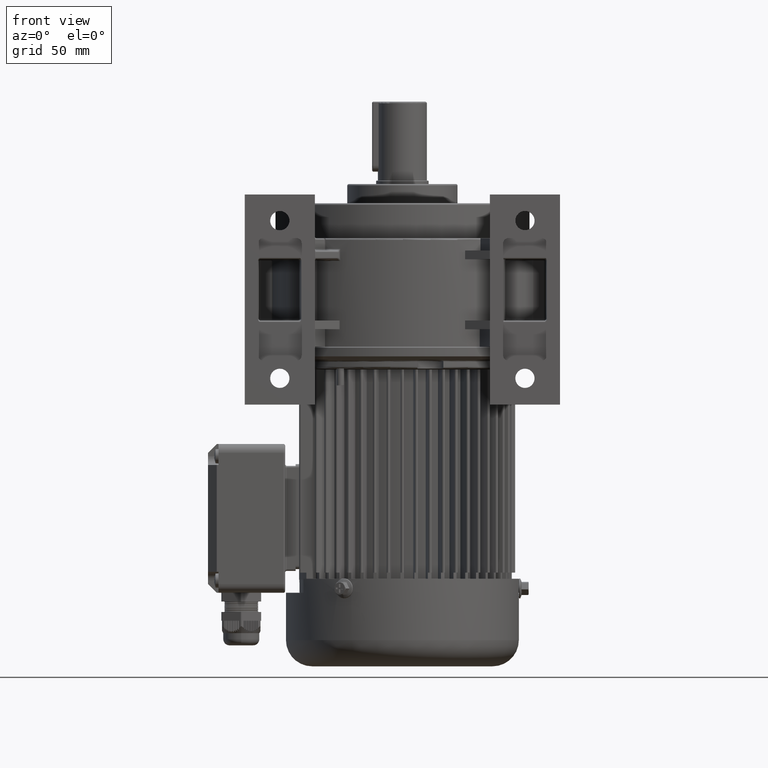
[diagram: clean part render]
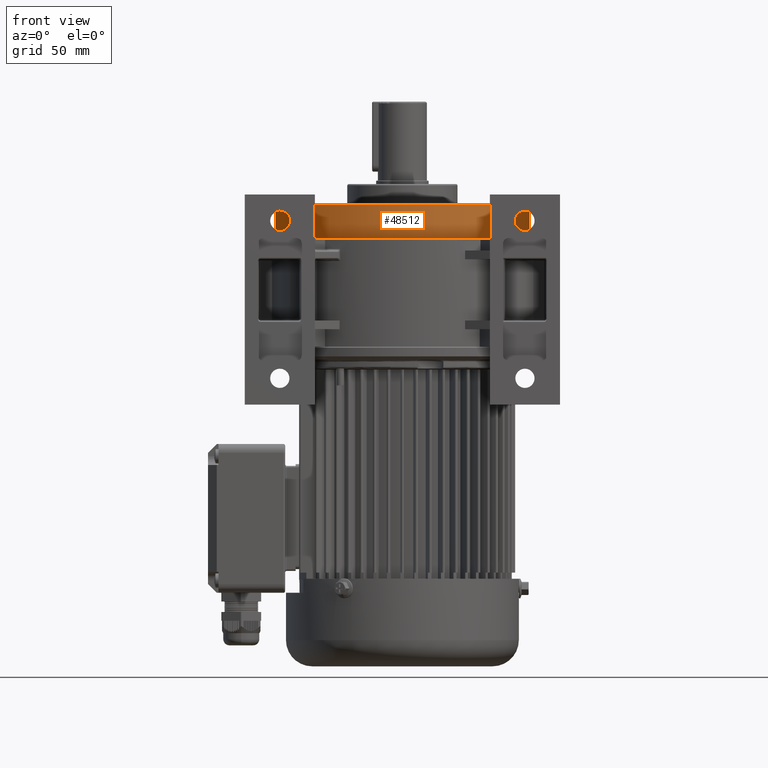
[diagram: same view with one face highlighted and labeled with its STEP entity id]
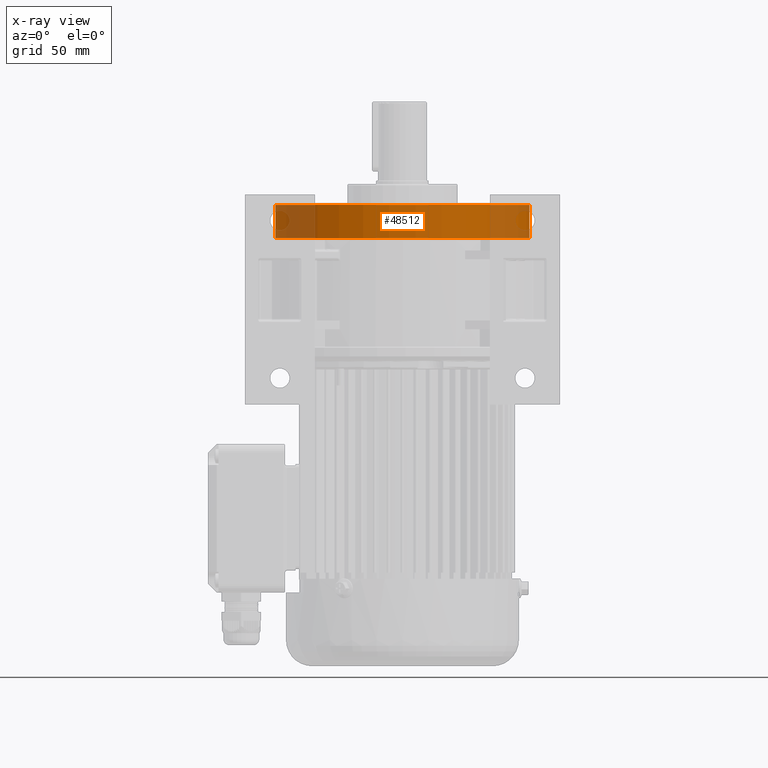
[diagram: x-ray of the same camera — body ghosted, the highlighted face saturated]
A machine part, front view. The second image highlights one B-rep face of the part: STEP entity #48512.
The next image is the same camera in x-ray: the body ghosted, the highlighted face saturated — about 26% of this face is hidden behind the body in this view.
In plain terms, the highlighted cylindrical surface (partial cylindrical patch) has radius 72.5 mm, axis along (0, 0, -1).
Its self-contained STEP definition (entity closure, byte-faithful):
#10625 = DIRECTION ( 'NONE',  ( 1.000000000000000000, 0.0000000000000000000, 0.0000000000000000000 ) ) ;
#10626 = DIRECTION ( 'NONE',  ( 0.0000000000000000000, 0.0000000000000000000, 1.000000000000000000 ) ) ;
#10627 = CARTESIAN_POINT ( 'NONE',  ( 0.0000000000000000000, 10.00000000000000000, -62.00000000000000000 ) ) ;
#10628 = AXIS2_PLACEMENT_3D ( 'NONE', #10627, #10626, #10625 ) ;
#10630 = FACE_OUTER_BOUND ( 'NONE', #48533, .T. ) ;
#10636 = CIRCLE ( 'NONE', #10628, 72.50000000000000000 ) ;
#10662 = DIRECTION ( 'NONE',  ( 1.000000000000000000, 0.0000000000000000000, 0.0000000000000000000 ) ) ;
#10663 = CARTESIAN_POINT ( 'NONE',  ( 0.0000000000000000000, 10.00000000000000000, -81.00000000000000000 ) ) ;
#10664 = AXIS2_PLACEMENT_3D ( 'NONE', #10663, #10717, #10716 ) ;
#10665 = CIRCLE ( 'NONE', #10664, 72.50000000000000000 ) ;
#10675 = DIRECTION ( 'NONE',  ( 0.0000000000000000000, 0.0000000000000000000, 1.000000000000000000 ) ) ;
#10676 = CARTESIAN_POINT ( 'NONE',  ( 0.0000000000000000000, 10.00000000000000000, -82.00000000000000000 ) ) ;
#10678 = AXIS2_PLACEMENT_3D ( 'NONE', #10676, #10675, #10662 ) ;
#10679 = CYLINDRICAL_SURFACE ( 'NONE', #10678, 72.50000000000000000 ) ;
#10716 = DIRECTION ( 'NONE',  ( 1.000000000000000000, 0.0000000000000000000, 0.0000000000000000000 ) ) ;
#10717 = DIRECTION ( 'NONE',  ( 0.0000000000000000000, 0.0000000000000000000, 1.000000000000000000 ) ) ;
#18806 = VERTEX_POINT ( 'NONE', #26922 ) ;
#18809 = VERTEX_POINT ( 'NONE', #26935 ) ;
#18830 = EDGE_CURVE ( 'NONE', #18809, #18834, #26952, .T. ) ;
#18834 = VERTEX_POINT ( 'NONE', #27048 ) ;
#18838 = VERTEX_POINT ( 'NONE', #27047 ) ;
#18839 = EDGE_CURVE ( 'NONE', #18806, #18838, #27007, .T. ) ;
#26922 = CARTESIAN_POINT ( 'NONE',  ( -72.50000000000000000, 10.00000000000000900, -81.00000000000000000 ) ) ;
#26935 = CARTESIAN_POINT ( 'NONE',  ( 72.50000000000000000, 10.00000000000000000, -81.00000000000000000 ) ) ;
#26951 = CARTESIAN_POINT ( 'NONE',  ( 72.50000000000000000, 10.00000000000000000, -82.00000000000000000 ) ) ;
#26952 = LINE ( 'NONE', #26951, #26998 ) ;
#26990 = DIRECTION ( 'NONE',  ( 0.0000000000000000000, 0.0000000000000000000, 1.000000000000000000 ) ) ;
#26998 = VECTOR ( 'NONE', #26990, 1000.000000000000000 ) ;
#27007 = LINE ( 'NONE', #27030, #27029 ) ;
#27028 = DIRECTION ( 'NONE',  ( 0.0000000000000000000, 0.0000000000000000000, 1.000000000000000000 ) ) ;
#27029 = VECTOR ( 'NONE', #27028, 1000.000000000000000 ) ;
#27030 = CARTESIAN_POINT ( 'NONE',  ( -72.50000000000000000, 10.00000000000000900, -82.00000000000000000 ) ) ;
#27047 = CARTESIAN_POINT ( 'NONE',  ( -72.50000000000000000, 10.00000000000000900, -62.00000000000000000 ) ) ;
#27048 = CARTESIAN_POINT ( 'NONE',  ( 72.50000000000000000, 10.00000000000000000, -62.00000000000000000 ) ) ;
#48496 = EDGE_CURVE ( 'NONE', #18838, #18834, #10636, .T. ) ;
#48511 = ORIENTED_EDGE ( 'NONE', *, *, #48525, .T. ) ;
#48512 = ADVANCED_FACE ( 'NONE', ( #10630 ), #10679, .T. ) ;
#48513 = ORIENTED_EDGE ( 'NONE', *, *, #18830, .T. ) ;
#48515 = ORIENTED_EDGE ( 'NONE', *, *, #48496, .F. ) ;
#48525 = EDGE_CURVE ( 'NONE', #18806, #18809, #10665, .T. ) ;
#48531 = ORIENTED_EDGE ( 'NONE', *, *, #18839, .F. ) ;
#48533 = EDGE_LOOP ( 'NONE', ( #48531, #48511, #48513, #48515 ) ) ;